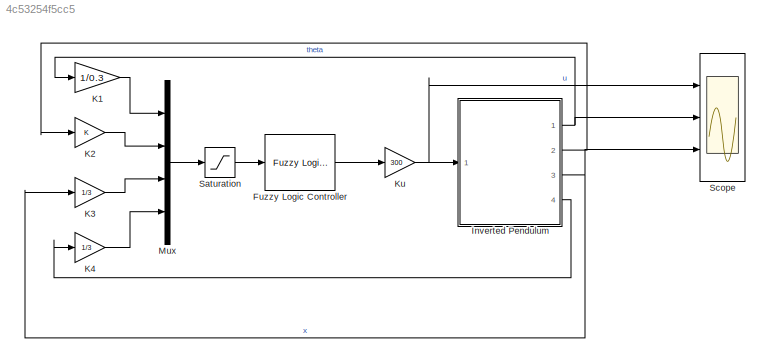
MODEL slx_4c53254f5cc5
KIND model
CONFIG AbsTol = auto
CONFIG EnableMultiTasking = off
CONFIG FixedStep = 0.01
CONFIG MaxStep = auto
CONFIG MinStep = auto
CONFIG RelTol = 1e-3
CONFIG SampleTimeConstraint = Unconstrained
CONFIG Solver = ode4
CONFIG SolverName = ode4
CONFIG StartTime = 0.0
CONFIG StopTime = 20
BLOCK [Reference] Fuzzy Logic Controller  REF=fuzblock/Fuzzy Logic   (lib defined in mdl_858b3b3e7478)
Controller
  Ports = [1, 1]
  SourceBlock = fuzblock/Fuzzy Logic \nController
  SourceProductBaseCode = FL
  SourceProductName = Fuzzy Logic Toolbox
  SourceType = Fuzzy Inference System
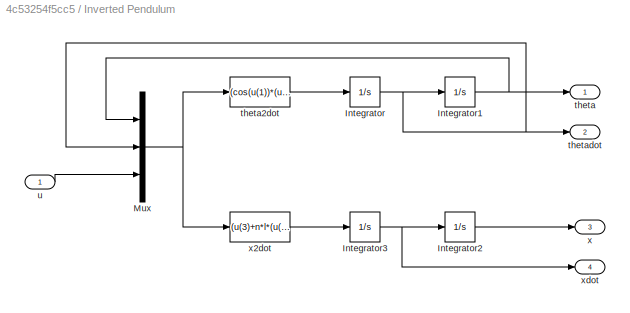
BLOCK [SubSystem] Inverted Pendulum
  Ports = [1, 4]
  RequestExecContextInheritance = off
  Variant = off
BLOCK [Integrator] Inverted Pendulum/Integrator
  InitialCondition = thetadot0
  Ports = [1, 1]
BLOCK [Integrator] Inverted Pendulum/Integrator1
  InitialCondition = theta0
  Ports = [1, 1]
BLOCK [Integrator] Inverted Pendulum/Integrator2
  InitialCondition = x0
  Ports = [1, 1]
BLOCK [Integrator] Inverted Pendulum/Integrator3
  InitialCondition = xdot0
  Ports = [1, 1]
BLOCK [Mux] Inverted Pendulum/Mux
  DisplayOption = bar
  Inputs = 3
  Ports = [3, 1]
BLOCK [Outport] Inverted Pendulum/theta
  IconDisplay = Port number
BLOCK [Fcn] Inverted Pendulum/theta2dot
  Expr = (cos(u(1))*(u(3)+n*l*(u(2))^2*sin(u(1)))-(M+n)*(g*sin(u(1))))/(n*l*(cos(u(1)))^2-(M+n)*l)
BLOCK [Outport] Inverted Pendulum/thetadot
  IconDisplay = Port number
  Port = 2
BLOCK [Inport] Inverted Pendulum/u
  IconDisplay = Port number
BLOCK [Outport] Inverted Pendulum/x
  IconDisplay = Port number
  Port = 3
BLOCK [Fcn] Inverted Pendulum/x2dot
  Expr = (u(3)+n*l*(u(2)^2)*sin(u(1))-n*g*sin(u(1))*cos(u(1)))/((M+n)-n*(cos(u(1)))^2)
BLOCK [Outport] Inverted Pendulum/xdot
  IconDisplay = Port number
  Port = 4
BLOCK [Gain] K1 
  Gain = 1/0.3
  OutDataTypeStr = Inherit: Inherit via internal rule
  ParamDataTypeStr = Inherit: Inherit via internal rule
  SaturateOnIntegerOverflow = off
BLOCK [Gain] K2 
  OutDataTypeStr = Inherit: Inherit via internal rule
  ParamDataTypeStr = Inherit: Inherit via internal rule
  SaturateOnIntegerOverflow = off
BLOCK [Gain] K3 
  Gain = 1/3
  OutDataTypeStr = Inherit: Inherit via internal rule
  ParamDataTypeStr = Inherit: Inherit via internal rule
  SaturateOnIntegerOverflow = off
BLOCK [Gain] K4 
  Gain = 1/3
  OutDataTypeStr = Inherit: Inherit via internal rule
  ParamDataTypeStr = Inherit: Inherit via internal rule
  SaturateOnIntegerOverflow = off
BLOCK [Gain] Ku
  Gain = 300
  OutDataTypeStr = Inherit: Inherit via internal rule
  ParamDataTypeStr = Inherit: Inherit via internal rule
  SaturateOnIntegerOverflow = off
BLOCK [Mux] Mux
  DisplayOption = bar
  Ports = [4, 1]
BLOCK [Saturate] Saturation
  InputPortMap = u0
  LowerLimit = -1
  Ports = [1, 1]
  UpperLimit = 1
BLOCK [Scope] Scope
  NumInputPorts = 3
  Ports = [3]
  ScopeSpecificationString = Simulink.scopes.TimeScopeBlockCfg('CurrentConfiguration', extmgr.ConfigurationSet(extmgr.Configuration('Core','General UI',true,'FigureColor',[1 1 1]),extmgr.Configuration('Core','Source UI',true),extmgr.Configuration('Sources','WiredSimulink',true),extmgr.Configuration('Visuals','Time Domain',true,'SerializedDisplays',{struct('MinYLimReal','-12.79781','MaxYLimReal','23.34173','YLabelReal','','Min...<+3108ch>
LINE Fuzzy Logic Controller:1 -> Ku:1
NET Inverted Pendulum/Integrator1:1 -> Inverted Pendulum/Mux:1, Inverted Pendulum/theta:1
LINE Inverted Pendulum/Integrator2:1 -> Inverted Pendulum/x:1
NET Inverted Pendulum/Integrator3:1 -> Inverted Pendulum/Integrator2:1, Inverted Pendulum/xdot:1
NET Inverted Pendulum/Integrator:1 -> Inverted Pendulum/Integrator1:1, Inverted Pendulum/Mux:2, Inverted Pendulum/thetadot:1
NET Inverted Pendulum/Mux:1 -> Inverted Pendulum/theta2dot:1, Inverted Pendulum/x2dot:1
LINE Inverted Pendulum/theta2dot:1 -> Inverted Pendulum/Integrator:1
LINE Inverted Pendulum/u:1 -> Inverted Pendulum/Mux:3
LINE Inverted Pendulum/x2dot:1 -> Inverted Pendulum/Integrator3:1
NET Inverted Pendulum:1 -> K1 :1, Scope:2
LINE Inverted Pendulum:2 -> K2 :1
NET Inverted Pendulum:3 -> K3 :1, Scope:3
LINE Inverted Pendulum:4 -> K4 :1
LINE K1 :1 -> Mux:1
LINE K2 :1 -> Mux:2
LINE K3 :1 -> Mux:3
LINE K4 :1 -> Mux:4
NET Ku:1 -> Inverted Pendulum:1, Scope:1
LINE Mux:1 -> Saturation:1
LINE Saturation:1 -> Fuzzy Logic Controller:1
note: NET lines group one-source signal fan-out (src -> all destinations, sorted); 1:1 wires keep LINE
